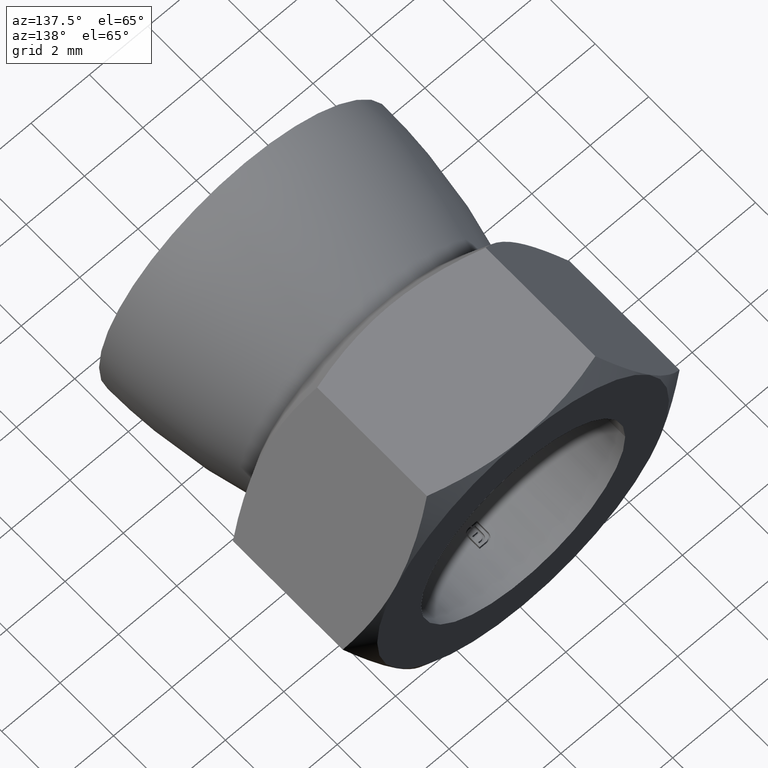
[diagram: clean part render]
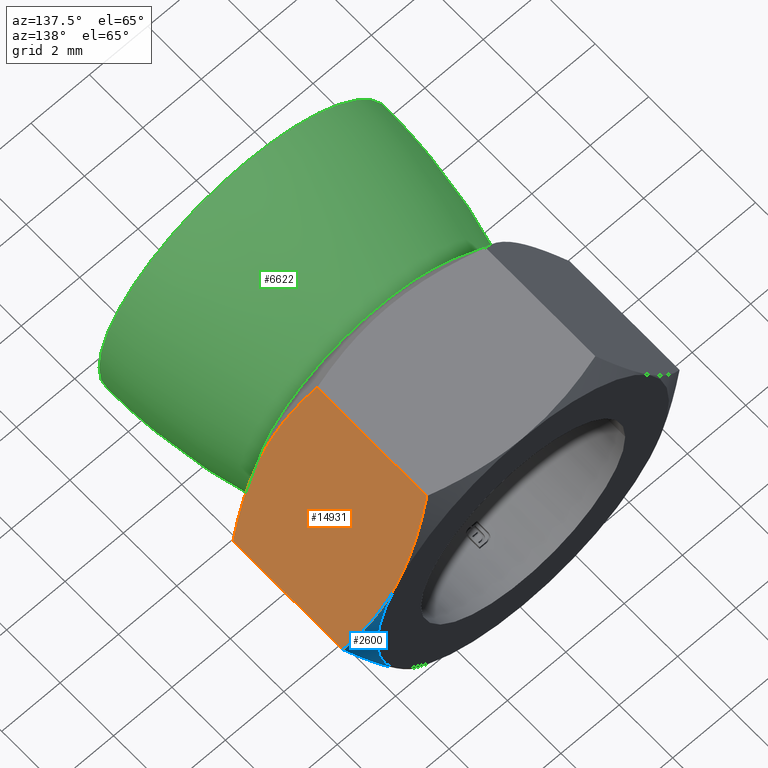
[diagram: same view with three faces highlighted in distinct colors, each labeled with its STEP entity id]
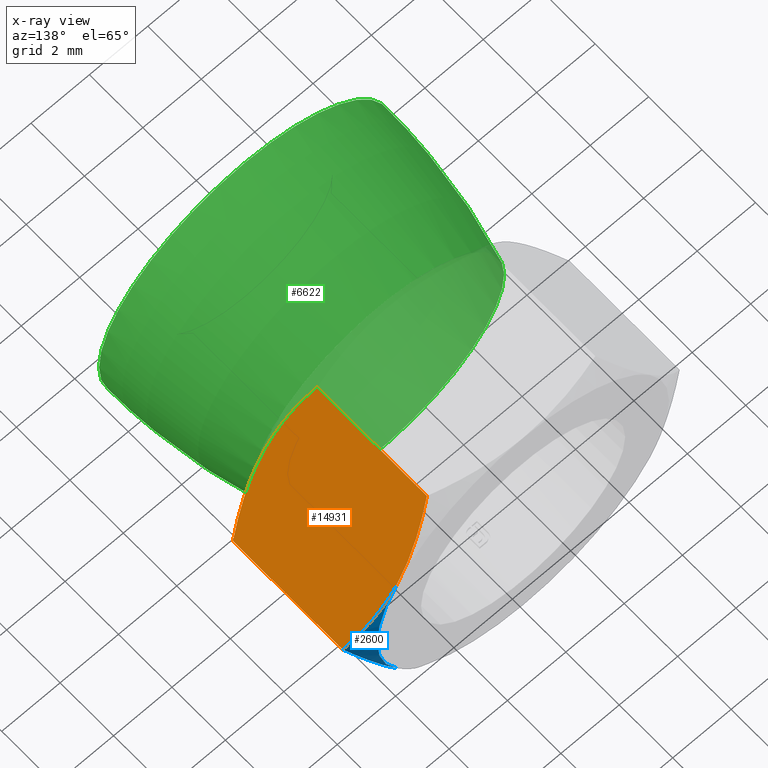
[diagram: x-ray of the same camera — body ghosted, the three highlighted faces saturated]
A machine part, auxiliary view with three faces highlighted in distinct colors.
The next image is the same camera in x-ray (body ghosted, the three faces saturated) — at least one of them is partly hidden behind the body in this view.
Their STEP definitions:

[orange] entity #14931 — the highlighted planar face has unit normal (0.866, 0, 0.5).
#60 = EDGE_LOOP ( 'NONE', ( #5234, #3136, #15758, #11032, #5533 ) ) ;
#96 = DIRECTION ( 'NONE',  ( 0.8660254037844383745, 2.710875792939633331E-17, 0.5000000000000004441 ) ) ;
#607 = DIRECTION ( 'NONE',  ( 3.130249737586675703E-17, -1.000000000000000000, -0.000000000000000000 ) ) ;
#746 = CARTESIAN_POINT ( 'NONE',  ( 4.452621892014636984, 10.40414518843273406, 2.287832656137185339 ) ) ;
#804 = CARTESIAN_POINT ( 'NONE',  ( 4.575665857285978966, 10.39358962790934271, 2.074714256722479888 ) ) ;
#877 = VECTOR ( 'NONE', #10027, 1000.000000000000000 ) ;
#961 = LINE ( 'NONE', #10846, #4904 ) ;
#1208 = CARTESIAN_POINT ( 'NONE',  ( 5.773502691896255534, 9.957563201047536339, 6.505213034913026604E-15 ) ) ;
#1794 = EDGE_CURVE ( 'NONE', #10799, #5642, #15880, .T. ) ;
#2524 = EDGE_CURVE ( 'NONE', #5642, #4072, #3640, .T. ) ;
#3136 = ORIENTED_EDGE ( 'NONE', *, *, #9992, .T. ) ;
#3423 = CARTESIAN_POINT ( 'NONE',  ( 4.823738040146305472, 5.404772064894670436, 1.645040632063879293 ) ) ;
#3527 = CARTESIAN_POINT ( 'NONE',  ( 5.302151296893804044, 5.578592321029638867, 0.8164045643627186877 ) ) ;
#3640 = LINE ( 'NONE', #6090, #877 ) ;
#3909 = DIRECTION ( 'NONE',  ( 0.5000000000000004441, 0.000000000000000000, -0.8660254037844383745 ) ) ;
#4072 = VERTEX_POINT ( 'NONE', #6693 ) ;
#4562 = CARTESIAN_POINT ( 'NONE',  ( 4.939961795957294122, 10.32248699130896341, 1.443735181952768842 ) ) ;
#4695 = CARTESIAN_POINT ( 'NONE',  ( 4.210170878072868383, 5.403990664014552081, 2.707770130630919869 ) ) ;
#4803 = CARTESIAN_POINT ( 'NONE',  ( 4.086880414895044389, 5.414429110310912563, 2.921315476943608935 ) ) ;
#4904 = VECTOR ( 'NONE', #607, 1000.000000000000000 ) ;
#5103 = AXIS2_PLACEMENT_3D ( 'NONE', #6371, #96, #3909 ) ;
#5234 = ORIENTED_EDGE ( 'NONE', *, *, #12821, .F. ) ;
#5533 = ORIENTED_EDGE ( 'NONE', *, *, #1794, .F. ) ;
#5582 = CARTESIAN_POINT ( 'NONE',  ( 2.886751345948128655, 5.850727175817934445, 4.999999999999999112 ) ) ;
#5642 = VERTEX_POINT ( 'NONE', #8342 ) ;
#6047 = CARTESIAN_POINT ( 'NONE',  ( 3.122720772761743646, 5.714490163726202887, 4.591288963725912886 ) ) ;
#6090 = CARTESIAN_POINT ( 'NONE',  ( 5.773502691896259087, 15.40414518843273584, -3.052191859402897635E-16 ) ) ;
#6189 = B_SPLINE_CURVE_WITH_KNOTS ( 'NONE', 3,
 ( #7707, #15323, #10211, #6536 ),
 .UNSPECIFIED., .F., .F.,
 ( 4, 4 ),
 ( 2.380735200838623472E-07, 0.002921158011986709890 ),
 .UNSPECIFIED. ) ;
#6371 = CARTESIAN_POINT ( 'NONE',  ( 5.773502691896259087, 15.40414518843273584, -3.052191859402897635E-16 ) ) ;
#6536 = CARTESIAN_POINT ( 'NONE',  ( 4.330127018922190096, 10.40414518843273228, 2.500000000000000000 ) ) ;
#6693 = CARTESIAN_POINT ( 'NONE',  ( 5.773502691896256422, 5.850727175817934445, 5.637851296924623057E-15 ) ) ;
#6702 = CARTESIAN_POINT ( 'NONE',  ( 2.886751345948129099, 9.957563201047536339, 4.999999999999997335 ) ) ;
#7028 = CARTESIAN_POINT ( 'NONE',  ( 4.330127018922190096, 10.40414518843273228, 2.500000000000000000 ) ) ;
#7083 = CARTESIAN_POINT ( 'NONE',  ( 5.300482436767275374, 10.20580086606057968, 0.8192951148925926574 ) ) ;
#7707 = CARTESIAN_POINT ( 'NONE',  ( 2.886751345948129099, 9.957563201047536339, 4.999999999999997335 ) ) ;
#8286 = FACE_OUTER_BOUND ( 'NONE', #60, .T. ) ;
#8342 = CARTESIAN_POINT ( 'NONE',  ( 5.773502691896255534, 9.957563201047536339, 6.505213034913026604E-15 ) ) ;
#8506 = CARTESIAN_POINT ( 'NONE',  ( 2.886751345948128655, 5.850727175817934445, 4.999999999999999112 ) ) ;
#9655 = CARTESIAN_POINT ( 'NONE',  ( 5.537975084925935931, 10.09354512833381357, 0.4079457818577149619 ) ) ;
#9992 = EDGE_CURVE ( 'NONE', #12926, #11579, #961, .T. ) ;
#10027 = DIRECTION ( 'NONE',  ( 3.130249737586675703E-17, -1.000000000000000000, -0.000000000000000000 ) ) ;
#10211 = CARTESIAN_POINT ( 'NONE',  ( 3.838309248099018411, 10.40414518843273406, 3.351853367131003125 ) ) ;
#10632 = B_SPLINE_CURVE_WITH_KNOTS ( 'NONE', 3,
 ( #15032, #3527, #3423, #4695, #4803, #13533, #14804, #13636, #6047, #8506 ),
 .UNSPECIFIED., .F., .F.,
 ( 4, 2, 2, 2, 4 ),
 ( 2.380735200893376212E-07, 0.002915699217586109615, 0.003644564503602614781, 0.004373429789619118213, 0.005831160361652128546 ),
 .UNSPECIFIED. ) ;
#10799 = VERTEX_POINT ( 'NONE', #15680 ) ;
#10846 = CARTESIAN_POINT ( 'NONE',  ( 2.886751345948126879, 15.40414518843273584, 4.999999999999998224 ) ) ;
#10924 = CARTESIAN_POINT ( 'NONE',  ( 4.819072548984005167, 10.35274090134890912, 1.653121499799248273 ) ) ;
#11032 = ORIENTED_EDGE ( 'NONE', *, *, #2524, .F. ) ;
#11486 = PLANE ( 'NONE',  #5103 ) ;
#11579 = VERTEX_POINT ( 'NONE', #5582 ) ;
#12821 = EDGE_CURVE ( 'NONE', #12926, #10799, #6189, .T. ) ;
#12926 = VERTEX_POINT ( 'NONE', #6702 ) ;
#13448 = EDGE_CURVE ( 'NONE', #4072, #11579, #10632, .T. ) ;
#13533 = CARTESIAN_POINT ( 'NONE',  ( 3.842998808858272941, 5.455133333985151545, 3.343730809630793388 ) ) ;
#13636 = CARTESIAN_POINT ( 'NONE',  ( 3.360662616945166548, 5.602068402268499447, 4.179161600353586081 ) ) ;
#14804 = CARTESIAN_POINT ( 'NONE',  ( 3.721875651820881536, 5.485357820840545351, 3.553522271592697290 ) ) ;
#14931 = ADVANCED_FACE ( 'NONE', ( #8286 ), #11486, .T. ) ;
#15032 = CARTESIAN_POINT ( 'NONE',  ( 5.773502691896256422, 5.850727175817934445, 5.637851296924623057E-15 ) ) ;
#15323 = CARTESIAN_POINT ( 'NONE',  ( 3.358985280702823761, 10.23020759039936323, 4.182066831946699814 ) ) ;
#15680 = CARTESIAN_POINT ( 'NONE',  ( 4.330127018922190096, 10.40414518843273228, 2.500000000000000000 ) ) ;
#15758 = ORIENTED_EDGE ( 'NONE', *, *, #13448, .F. ) ;
#15880 = B_SPLINE_CURVE_WITH_KNOTS ( 'NONE', 3,
 ( #7028, #746, #804, #10924, #4562, #7083, #9655, #1208 ),
 .UNSPECIFIED., .F., .F.,
 ( 4, 2, 2, 4 ),
 ( 0.002921158011986709890, 0.003648658599403062711, 0.004376159186819415098, 0.005831160361652119872 ),
 .UNSPECIFIED. ) ;

[blue] entity #2600 — the highlighted conical surface has half-angle 60 deg.
#265 = CONICAL_SURFACE ( 'NONE', #11144, 4.999999999999998224, 1.047197551196605847 ) ;
#746 = CARTESIAN_POINT ( 'NONE',  ( 4.452621892014636984, 10.40414518843273406, 2.287832656137185339 ) ) ;
#775 = VERTEX_POINT ( 'NONE', #4360 ) ;
#804 = CARTESIAN_POINT ( 'NONE',  ( 4.575665857285978966, 10.39358962790934271, 2.074714256722479888 ) ) ;
#1208 = CARTESIAN_POINT ( 'NONE',  ( 5.773502691896255534, 9.957563201047536339, 6.505213034913026604E-15 ) ) ;
#1617 = EDGE_LOOP ( 'NONE', ( #16131, #6443, #9801 ) ) ;
#1794 = EDGE_CURVE ( 'NONE', #10799, #5642, #15880, .T. ) ;
#2581 = CARTESIAN_POINT ( 'NONE',  ( 5.301268757141563981, 10.23020759039935967, -0.8179331680532965221 ) ) ;
#2600 = ADVANCED_FACE ( 'NONE', ( #4025 ), #265, .T. ) ;
#4025 = FACE_OUTER_BOUND ( 'NONE', #1617, .T. ) ;
#4360 = CARTESIAN_POINT ( 'NONE',  ( 4.330127018922192761, 10.40414518843273228, -2.499999999999997780 ) ) ;
#4471 = CARTESIAN_POINT ( 'NONE',  ( 0.000000000000000000, 10.40414518843273228, 0.000000000000000000 ) ) ;
#4562 = CARTESIAN_POINT ( 'NONE',  ( 4.939961795957294122, 10.32248699130896341, 1.443735181952768842 ) ) ;
#5642 = VERTEX_POINT ( 'NONE', #8342 ) ;
#5661 = B_SPLINE_CURVE_WITH_KNOTS ( 'NONE', 3,
 ( #10147, #2581, #7692, #12758 ),
 .UNSPECIFIED., .F., .F.,
 ( 4, 4 ),
 ( 2.380735200790403740E-07, 0.002921158011986711624 ),
 .UNSPECIFIED. ) ;
#5753 = DIRECTION ( 'NONE',  ( -0.000000000000000000, -1.000000000000000000, -0.000000000000000000 ) ) ;
#6443 = ORIENTED_EDGE ( 'NONE', *, *, #16081, .F. ) ;
#7028 = CARTESIAN_POINT ( 'NONE',  ( 4.330127018922190096, 10.40414518843273228, 2.500000000000000000 ) ) ;
#7083 = CARTESIAN_POINT ( 'NONE',  ( 5.300482436767275374, 10.20580086606057968, 0.8192951148925926574 ) ) ;
#7692 = CARTESIAN_POINT ( 'NONE',  ( 4.821944789745369775, 10.40414518843273406, -1.648146632868994654 ) ) ;
#7706 = DIRECTION ( 'NONE',  ( 7.347880794884106671E-17, 1.000000000000000000, -0.000000000000000000 ) ) ;
#8342 = CARTESIAN_POINT ( 'NONE',  ( 5.773502691896255534, 9.957563201047536339, 6.505213034913026604E-15 ) ) ;
#9655 = CARTESIAN_POINT ( 'NONE',  ( 5.537975084925935931, 10.09354512833381357, 0.4079457818577149619 ) ) ;
#9801 = ORIENTED_EDGE ( 'NONE', *, *, #1794, .T. ) ;
#10147 = CARTESIAN_POINT ( 'NONE',  ( 5.773502691896255534, 9.957563201047536339, 6.505213034913026604E-15 ) ) ;
#10799 = VERTEX_POINT ( 'NONE', #15680 ) ;
#10924 = CARTESIAN_POINT ( 'NONE',  ( 4.819072548984005167, 10.35274090134890912, 1.653121499799248273 ) ) ;
#11144 = AXIS2_PLACEMENT_3D ( 'NONE', #4471, #5753, #11441 ) ;
#11441 = DIRECTION ( 'NONE',  ( 0.000000000000000000, 0.000000000000000000, -1.000000000000000000 ) ) ;
#12758 = CARTESIAN_POINT ( 'NONE',  ( 4.330127018922192761, 10.40414518843273228, -2.499999999999997780 ) ) ;
#12833 = CIRCLE ( 'NONE', #14968, 4.999999999999998224 ) ;
#13471 = EDGE_CURVE ( 'NONE', #5642, #775, #5661, .T. ) ;
#14968 = AXIS2_PLACEMENT_3D ( 'NONE', #15322, #7706, #15698 ) ;
#15322 = CARTESIAN_POINT ( 'NONE',  ( 6.363451432349548478E-16, 10.40414518843273228, 0.000000000000000000 ) ) ;
#15680 = CARTESIAN_POINT ( 'NONE',  ( 4.330127018922190096, 10.40414518843273228, 2.500000000000000000 ) ) ;
#15698 = DIRECTION ( 'NONE',  ( 1.000000000000000000, 0.000000000000000000, 0.000000000000000000 ) ) ;
#15880 = B_SPLINE_CURVE_WITH_KNOTS ( 'NONE', 3,
 ( #7028, #746, #804, #10924, #4562, #7083, #9655, #1208 ),
 .UNSPECIFIED., .F., .F.,
 ( 4, 2, 2, 4 ),
 ( 0.002921158011986709890, 0.003648658599403062711, 0.004376159186819415098, 0.005831160361652119872 ),
 .UNSPECIFIED. ) ;
#16081 = EDGE_CURVE ( 'NONE', #10799, #775, #12833, .T. ) ;
#16131 = ORIENTED_EDGE ( 'NONE', *, *, #13471, .T. ) ;

[green] entity #6622 — the highlighted toroidal blend (fillet) surface has major radius 13.2071 mm and minor (blend) radius 18.2071 mm.
#209 = FACE_OUTER_BOUND ( 'NONE', #14365, .T. ) ;
#1383 = DIRECTION ( 'NONE',  ( 7.347880794884106671E-17, 1.000000000000000000, -0.000000000000000000 ) ) ;
#1858 = EDGE_CURVE ( 'NONE', #10228, #10228, #6190, .T. ) ;
#3440 = EDGE_LOOP ( 'NONE', ( #12499 ) ) ;
#3965 = FACE_OUTER_BOUND ( 'NONE', #3440, .T. ) ;
#4483 = AXIS2_PLACEMENT_3D ( 'NONE', #12553, #15040, #6270 ) ;
#4877 = EDGE_CURVE ( 'NONE', #14997, #14997, #13684, .T. ) ;
#6190 = CIRCLE ( 'NONE', #6356, 5.000000000000000000 ) ;
#6270 = DIRECTION ( 'NONE',  ( -1.000000000000000000, 0.000000000000000000, 0.000000000000000000 ) ) ;
#6356 = AXIS2_PLACEMENT_3D ( 'NONE', #6419, #15314, #7695 ) ;
#6419 = CARTESIAN_POINT ( 'NONE',  ( 0.000000000000000000, 0.000000000000000000, 0.000000000000000000 ) ) ;
#6622 = ADVANCED_FACE ( 'NONE', ( #209, #3965 ), #12084, .T. ) ;
#7010 = ORIENTED_EDGE ( 'NONE', *, *, #4877, .F. ) ;
#7154 = CARTESIAN_POINT ( 'NONE',  ( -4.300000000000001599, 5.000000000000001776, 0.000000000000000000 ) ) ;
#7578 = AXIS2_PLACEMENT_3D ( 'NONE', #14126, #1383, #9050 ) ;
#7695 = DIRECTION ( 'NONE',  ( -1.000000000000000000, 7.347880794884106671E-17, 0.000000000000000000 ) ) ;
#9050 = DIRECTION ( 'NONE',  ( -1.000000000000000000, 7.347880794884106671E-17, 0.000000000000000000 ) ) ;
#10228 = VERTEX_POINT ( 'NONE', #13580 ) ;
#12084 = TOROIDAL_SURFACE ( 'NONE', #7578, -13.20714285714290703, 18.20714285714290881 ) ;
#12499 = ORIENTED_EDGE ( 'NONE', *, *, #1858, .T. ) ;
#12553 = CARTESIAN_POINT ( 'NONE',  ( 3.673940397442054938E-16, 5.000000000000001776, 0.000000000000000000 ) ) ;
#13580 = CARTESIAN_POINT ( 'NONE',  ( -5.000000000000000000, 3.673940397442053459E-16, 0.000000000000000000 ) ) ;
#13684 = CIRCLE ( 'NONE', #4483, 4.300000000000001599 ) ;
#14126 = CARTESIAN_POINT ( 'NONE',  ( 0.000000000000000000, -8.673617379884035472E-16, 0.000000000000000000 ) ) ;
#14365 = EDGE_LOOP ( 'NONE', ( #7010 ) ) ;
#14997 = VERTEX_POINT ( 'NONE', #7154 ) ;
#15040 = DIRECTION ( 'NONE',  ( 7.347880794884106671E-17, 1.000000000000000000, -0.000000000000000000 ) ) ;
#15314 = DIRECTION ( 'NONE',  ( 7.347880794884106671E-17, 1.000000000000000000, -0.000000000000000000 ) ) ;